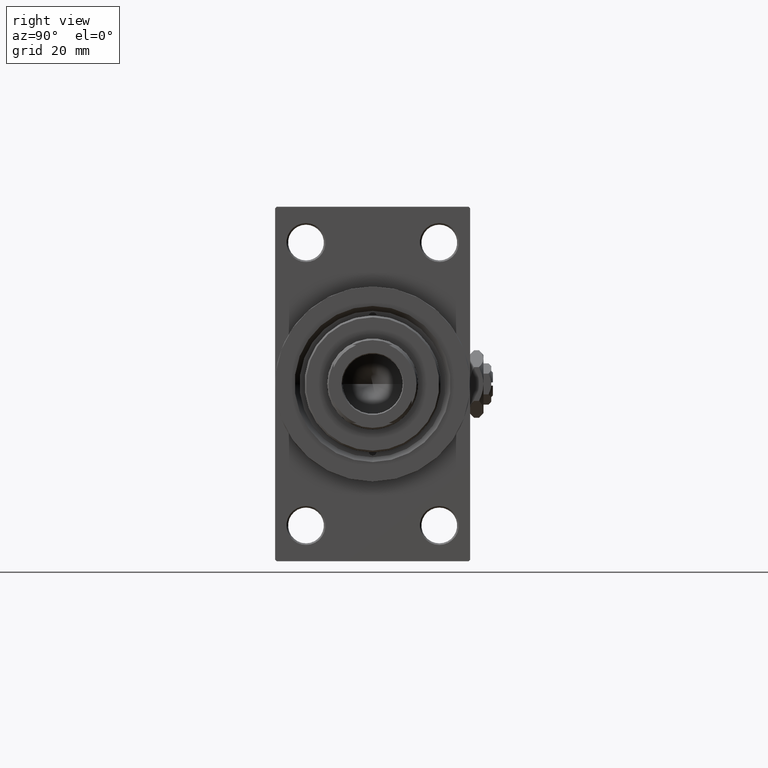
[diagram: clean part render]
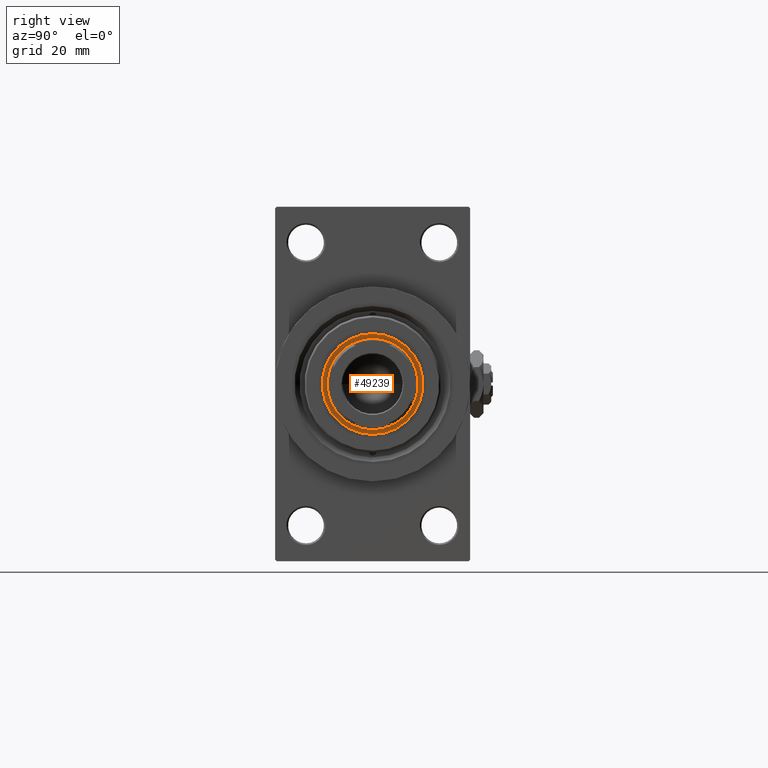
[diagram: same view with one face highlighted and labeled with its STEP entity id]
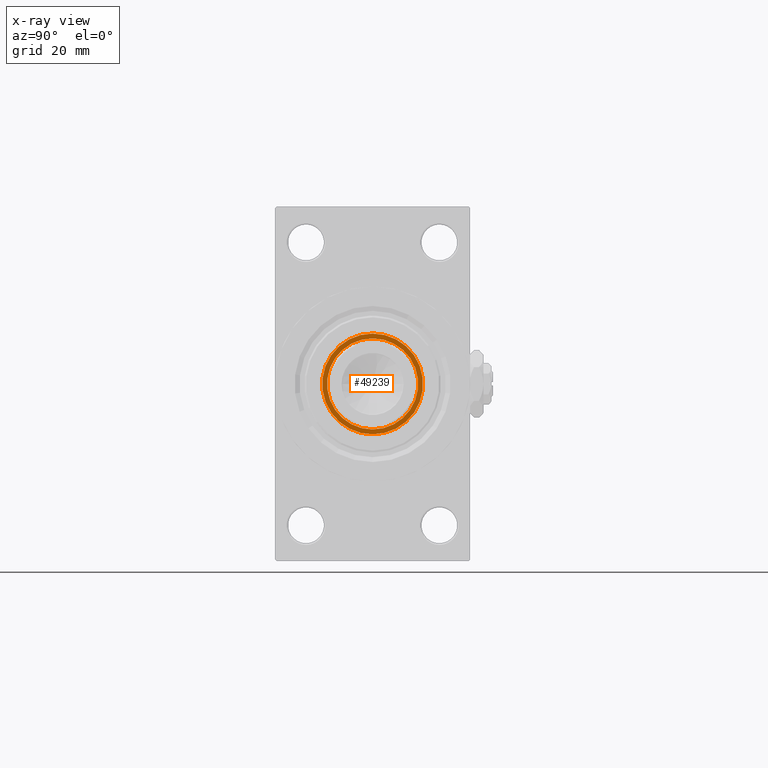
[diagram: x-ray of the same camera — body ghosted, the highlighted face saturated]
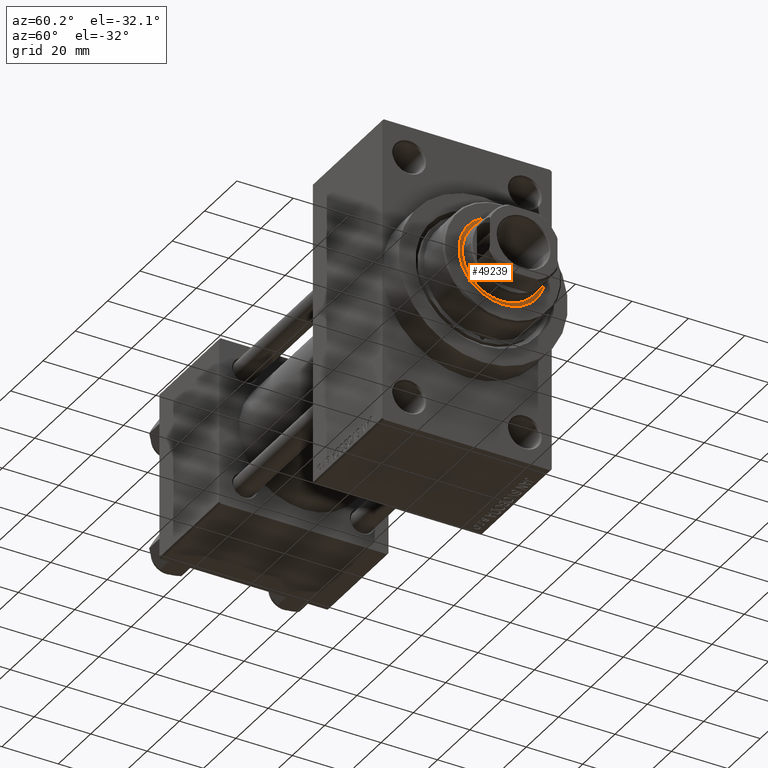
[diagram: same view with one face highlighted and labeled with its STEP entity id]
A machine part, right view. The second image highlights one B-rep face of the part: STEP entity #49239.
The next image is the same camera in x-ray: the body ghosted, the highlighted face saturated — about 0% of this face is hidden behind the body in this view.
A second angle (auxiliary view) of the same face is appended — the face is thin or edge-on in the first view.
In plain terms, the highlighted planar face has unit normal (1, -0, -0).
Its self-contained STEP definition (entity closure, byte-faithful):
#1101 = AXIS2_PLACEMENT_3D ( 'NONE', #23527, #15330, #26756 ) ;
#1931 = DIRECTION ( 'NONE',  ( 1.000000000000000000, 0.000000000000000000, -0.000000000000000000 ) ) ;
#3286 = DIRECTION ( 'NONE',  ( 1.000000000000000000, 0.000000000000000000, 0.000000000000000000 ) ) ;
#3533 = DIRECTION ( 'NONE',  ( -0.000000000000000000, -0.000000000000000000, -1.000000000000000000 ) ) ;
#6416 = DIRECTION ( 'NONE',  ( 0.000000000000000000, 0.000000000000000000, 1.000000000000000000 ) ) ;
#6693 = AXIS2_PLACEMENT_3D ( 'NONE', #8495, #19485, #38877 ) ;
#7267 = CIRCLE ( 'NONE', #35089, 14.00000000000000178 ) ;
#8495 = CARTESIAN_POINT ( 'NONE',  ( 0.000000000000000000, 0.000000000000000000, 54.76000000000000512 ) ) ;
#9321 = VERTEX_POINT ( 'NONE', #40736 ) ;
#9462 = EDGE_CURVE ( 'NONE', #9321, #48366, #22457, .T. ) ;
#10244 = CARTESIAN_POINT ( 'NONE',  ( 0.000000000000000000, 0.000000000000000000, 54.76000000000000512 ) ) ;
#10547 = EDGE_CURVE ( 'NONE', #27220, #19288, #7267, .T. ) ;
#15330 = DIRECTION ( 'NONE',  ( -0.000000000000000000, -0.000000000000000000, -1.000000000000000000 ) ) ;
#16068 = CARTESIAN_POINT ( 'NONE',  ( 0.000000000000000000, 0.000000000000000000, 54.76000000000000512 ) ) ;
#16667 = EDGE_LOOP ( 'NONE', ( #33656, #48155 ) ) ;
#17685 = AXIS2_PLACEMENT_3D ( 'NONE', #16068, #27504, #19324 ) ;
#19288 = VERTEX_POINT ( 'NONE', #48651 ) ;
#19324 = DIRECTION ( 'NONE',  ( 1.000000000000000000, 0.000000000000000000, 0.000000000000000000 ) ) ;
#19485 = DIRECTION ( 'NONE',  ( 0.000000000000000000, 0.000000000000000000, 1.000000000000000000 ) ) ;
#22457 = CIRCLE ( 'NONE', #17685, 15.50000000000000000 ) ;
#22913 = EDGE_LOOP ( 'NONE', ( #24329, #42887 ) ) ;
#23527 = CARTESIAN_POINT ( 'NONE',  ( 0.000000000000000000, 0.000000000000000000, 54.76000000000000512 ) ) ;
#24329 = ORIENTED_EDGE ( 'NONE', *, *, #35113, .T. ) ;
#26756 = DIRECTION ( 'NONE',  ( 1.000000000000000000, 0.000000000000000000, 0.000000000000000000 ) ) ;
#27220 = VERTEX_POINT ( 'NONE', #47255 ) ;
#27504 = DIRECTION ( 'NONE',  ( 0.000000000000000000, 0.000000000000000000, 1.000000000000000000 ) ) ;
#27836 = FACE_BOUND ( 'NONE', #16667, .T. ) ;
#31442 = CARTESIAN_POINT ( 'NONE',  ( 15.50000000000000000, 0.000000000000000000, 54.76000000000000512 ) ) ;
#33656 = ORIENTED_EDGE ( 'NONE', *, *, #10547, .T. ) ;
#35089 = AXIS2_PLACEMENT_3D ( 'NONE', #10244, #3533, #3286 ) ;
#35113 = EDGE_CURVE ( 'NONE', #48366, #9321, #37687, .T. ) ;
#35312 = FACE_OUTER_BOUND ( 'NONE', #22913, .T. ) ;
#35799 = AXIS2_PLACEMENT_3D ( 'NONE', #43996, #6416, #1931 ) ;
#37687 = CIRCLE ( 'NONE', #6693, 15.50000000000000000 ) ;
#38103 = EDGE_CURVE ( 'NONE', #19288, #27220, #38468, .T. ) ;
#38468 = CIRCLE ( 'NONE', #1101, 14.00000000000000178 ) ;
#38877 = DIRECTION ( 'NONE',  ( 1.000000000000000000, 0.000000000000000000, 0.000000000000000000 ) ) ;
#39294 = PLANE ( 'NONE',  #35799 ) ;
#40736 = CARTESIAN_POINT ( 'NONE',  ( -15.50000000000000000, 1.898202538678397557E-15, 54.76000000000000512 ) ) ;
#42887 = ORIENTED_EDGE ( 'NONE', *, *, #9462, .T. ) ;
#43996 = CARTESIAN_POINT ( 'NONE',  ( 0.000000000000000000, 0.000000000000000000, 54.76000000000000512 ) ) ;
#47255 = CARTESIAN_POINT ( 'NONE',  ( 14.00000000000000178, 0.000000000000000000, 54.76000000000000512 ) ) ;
#48155 = ORIENTED_EDGE ( 'NONE', *, *, #38103, .T. ) ;
#48366 = VERTEX_POINT ( 'NONE', #31442 ) ;
#48651 = CARTESIAN_POINT ( 'NONE',  ( -14.00000000000000178, 1.714505518806294835E-15, 54.76000000000000512 ) ) ;
#49239 = ADVANCED_FACE ( 'NONE', ( #35312, #27836 ), #39294, .T. ) ;